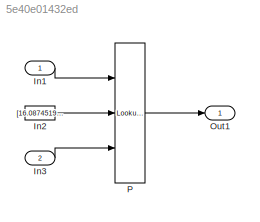
MODEL slx_5e40e01432ed
KIND model
CONFIG AbsTol = auto
CONFIG EnableMultiTasking = off
CONFIG FixedStep = auto
CONFIG MaxStep = auto
CONFIG MinStep = auto
CONFIG RelTol = 1e-3
CONFIG SampleTimeConstraint = Unconstrained
CONFIG Solver = FixedStepDiscrete
CONFIG SolverName = FixedStepDiscrete
CONFIG StartTime = 0.0
CONFIG StopTime = 10.0
BLOCK [Inport] In1
  IconDisplay = Port number
  OutDataTypeStr = double
  OutMax = 109.4517
  OutMin = 14.0875
  PortDimensions = 1
BLOCK [Constant] In2
  OutDataTypeStr = double
  Value = [16.0874519918209;20.1696655210339;40.1392197626471;60.5393889991193;107.451687903522]
BLOCK [Inport] In3
  IconDisplay = Port number
  Port = 2
  PortDimensions = 5
BLOCK [Outport] Out1
  IconDisplay = Port number
BLOCK [Reference] P  REF=simulink/Lookup
Tables/Lookup
Table
Dynamic
  Ports = [3, 1]
  SourceBlock = simulink/Lookup\nTables/Lookup\nTable\nDynamic
  SourceProductBaseCode = SL
  SourceProductName = Simulink
  SourceType = Lookup Table Dynamic
LINE In1:1 -> P:1
LINE In2:1 -> P:2
LINE In3:1 -> P:3
LINE P:1 -> Out1:1
